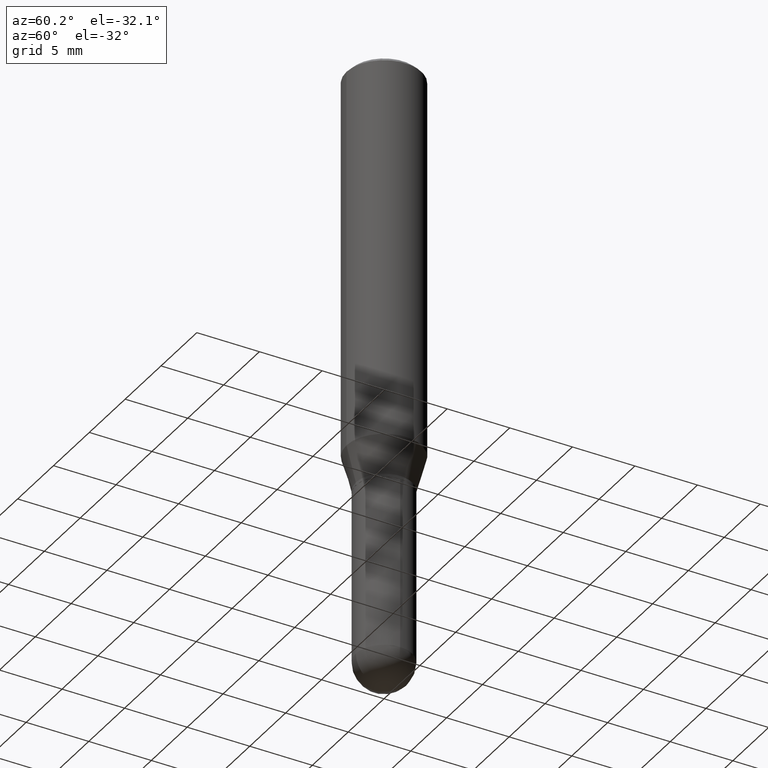
[diagram: clean part render]
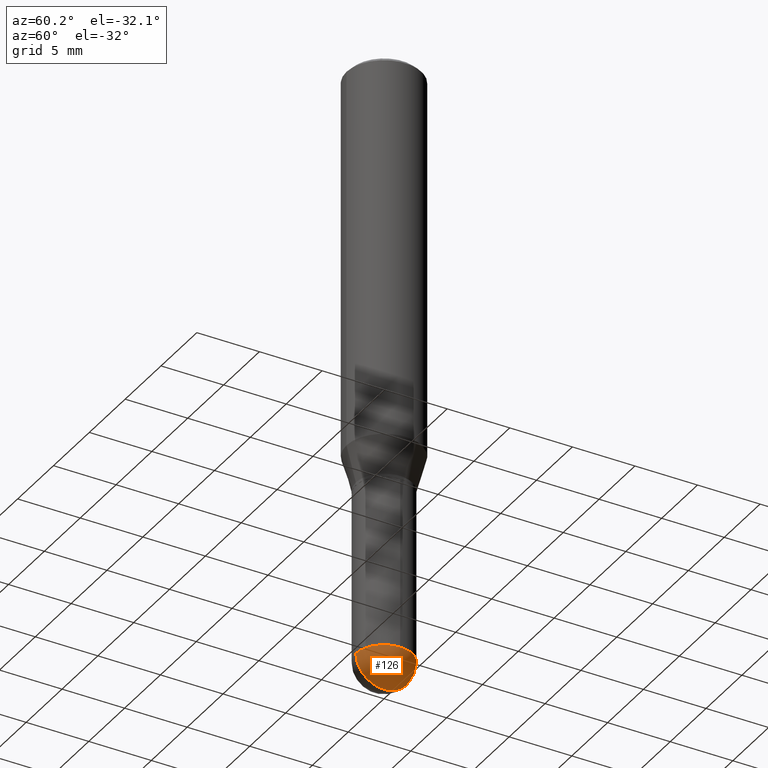
[diagram: same view with one face highlighted and labeled with its STEP entity id]
A machine part, auxiliary view. The second image highlights one B-rep face of the part: STEP entity #126.
In plain terms, the highlighted spherical surface has radius 2.2504 mm.
Its self-contained STEP definition (entity closure, byte-faithful):
#51 = VERTEX_POINT ( 'NONE', #215 ) ;
#70 = DIRECTION ( 'NONE',  ( -1.000000000000000000, 6.982962677686265133E-15, -4.883557194083112340E-29 ) ) ;
#72 = CIRCLE ( 'NONE', #355, 0.08859999999999998432 ) ;
#73 = SPHERICAL_SURFACE ( 'NONE', #110, 0.08859999999999998432 ) ;
#80 = VERTEX_POINT ( 'NONE', #348 ) ;
#89 = CIRCLE ( 'NONE', #376, 0.08859999999999998432 ) ;
#91 = VERTEX_POINT ( 'NONE', #268 ) ;
#98 = ORIENTED_EDGE ( 'NONE', *, *, #150, .T. ) ;
#104 = CARTESIAN_POINT ( 'NONE',  ( 4.589660035425309027E-29, -6.574486139531674551E-15, -1.879900000000000126 ) ) ;
#110 = AXIS2_PLACEMENT_3D ( 'NONE', #104, #70, #273 ) ;
#117 = VERTEX_POINT ( 'NONE', #195 ) ;
#124 = DIRECTION ( 'NONE',  ( -2.445468806185136597E-29, 3.491481338843145583E-15, 1.000000000000000000 ) ) ;
#126 = ADVANCED_FACE ( 'NONE', ( #308 ), #73, .T. ) ;
#134 = CARTESIAN_POINT ( 'NONE',  ( 4.589660035425309027E-29, -6.574486139531674551E-15, -1.879900000000000126 ) ) ;
#137 = ORIENTED_EDGE ( 'NONE', *, *, #430, .F. ) ;
#150 = EDGE_CURVE ( 'NONE', #117, #91, #72, .T. ) ;
#152 = DIRECTION ( 'NONE',  ( 1.000000000000000000, -6.982962677686265922E-15, 4.883557194083112340E-29 ) ) ;
#175 = DIRECTION ( 'NONE',  ( -7.105427357600999492E-15, -1.000000000000000000, 0.000000000000000000 ) ) ;
#176 = ORIENTED_EDGE ( 'NONE', *, *, #247, .F. ) ;
#195 = CARTESIAN_POINT ( 'NONE',  ( 4.810116958314376734E-29, -6.878406200832954656E-15, -1.968500000000000139 ) ) ;
#215 = CARTESIAN_POINT ( 'NONE',  ( -6.295408638834025049E-16, -0.08860000000000653464, -1.879899999999999460 ) ) ;
#217 = CARTESIAN_POINT ( 'NONE',  ( 4.597236808747438107E-29, -6.563635768891228653E-15, -1.879899999999999904 ) ) ;
#247 = EDGE_CURVE ( 'NONE', #80, #91, #89, .T. ) ;
#265 = CARTESIAN_POINT ( 'NONE',  ( 4.589660035425309027E-29, -6.574486139531674551E-15, -1.879900000000000126 ) ) ;
#268 = CARTESIAN_POINT ( 'NONE',  ( 6.186904932430488054E-16, 0.08859999999999342013, -1.879900000000000126 ) ) ;
#273 = DIRECTION ( 'NONE',  ( 6.982962677686265133E-15, 1.000000000000000000, -3.083349879982239114E-15 ) ) ;
#288 = CIRCLE ( 'NONE', #409, 0.08859999999999998432 ) ;
#296 = AXIS2_PLACEMENT_3D ( 'NONE', #134, #444, #175 ) ;
#302 = DIRECTION ( 'NONE',  ( 6.982962677686265133E-15, 1.000000000000000000, 0.000000000000000000 ) ) ;
#304 = CIRCLE ( 'NONE', #296, 0.08859999999999998432 ) ;
#308 = FACE_OUTER_BOUND ( 'NONE', #336, .T. ) ;
#316 = DIRECTION ( 'NONE',  ( 1.000000000000000000, -6.982962677686270655E-15, 0.000000000000000000 ) ) ;
#336 = EDGE_LOOP ( 'NONE', ( #468, #98, #176, #137 ) ) ;
#348 = CARTESIAN_POINT ( 'NONE',  ( 0.08859999999999998432, -6.237356837776335042E-15, -1.879899999999999904 ) ) ;
#355 = AXIS2_PLACEMENT_3D ( 'NONE', #265, #152, #302 ) ;
#373 = DIRECTION ( 'NONE',  ( 1.000000000000000000, -6.982962677686270655E-15, 0.000000000000000000 ) ) ;
#376 = AXIS2_PLACEMENT_3D ( 'NONE', #436, #124, #316 ) ;
#409 = AXIS2_PLACEMENT_3D ( 'NONE', #217, #412, #373 ) ;
#412 = DIRECTION ( 'NONE',  ( -2.445468806185136597E-29, 3.491481338843145583E-15, 1.000000000000000000 ) ) ;
#430 = EDGE_CURVE ( 'NONE', #51, #80, #288, .T. ) ;
#436 = CARTESIAN_POINT ( 'NONE',  ( 4.597236808747438107E-29, -6.563635768891228653E-15, -1.879899999999999904 ) ) ;
#440 = EDGE_CURVE ( 'NONE', #117, #51, #304, .T. ) ;
#444 = DIRECTION ( 'NONE',  ( -1.000000000000000000, 7.105427357601001070E-15, -4.926315508542082329E-29 ) ) ;
#468 = ORIENTED_EDGE ( 'NONE', *, *, #440, .F. ) ;